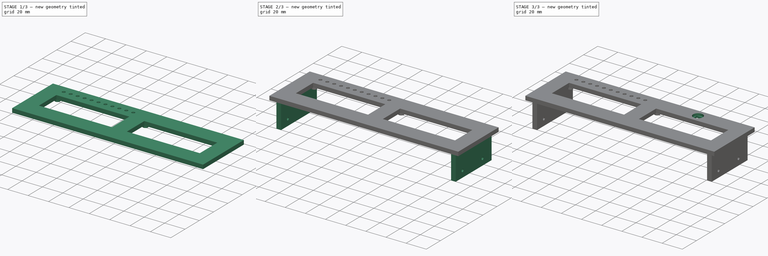
[diagram: build sequence overview — one tinted view per stage of 3, left to right]
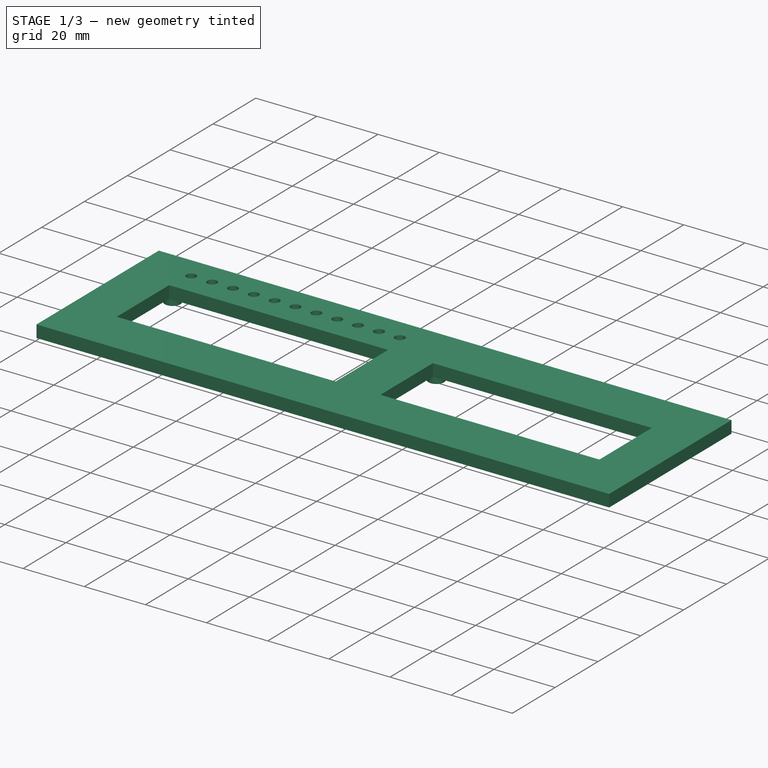
[diagram: stage 1 of 3 — iso view after this stage's code; geometry added in this stage tinted green]
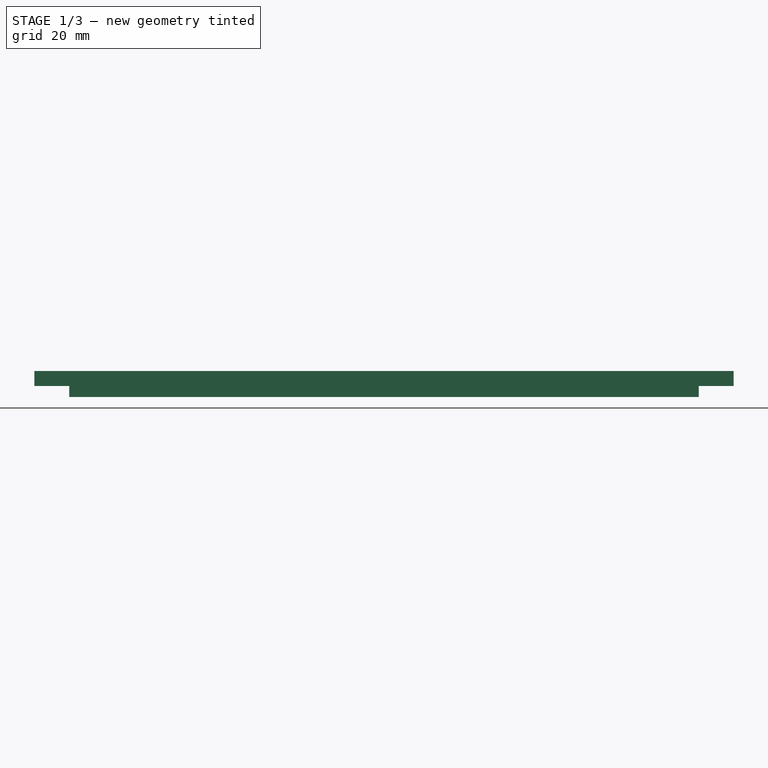
[diagram: stage 1 of 3 — front view after this stage's code; geometry added in this stage tinted green]
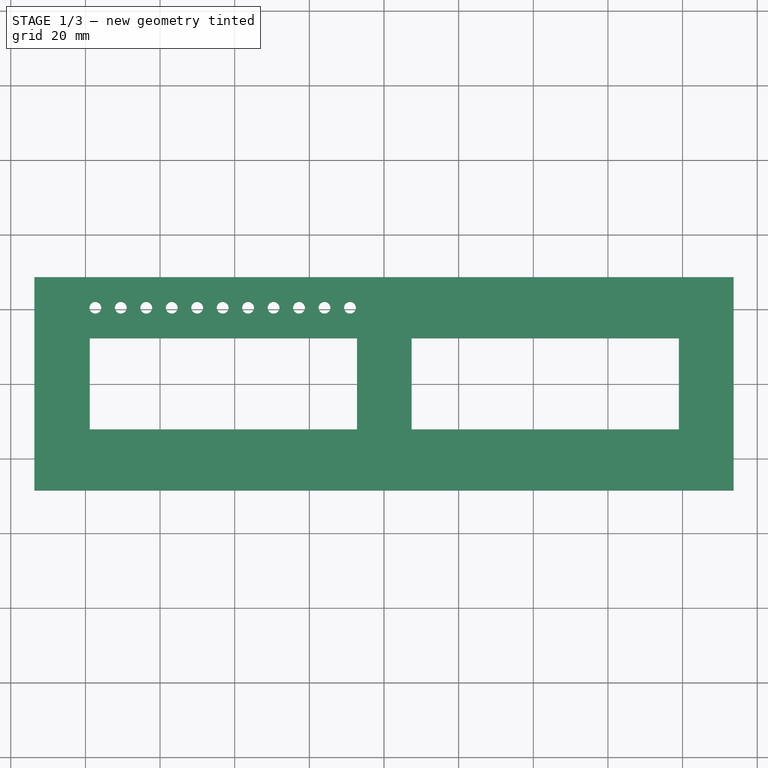
[diagram: stage 1 of 3 — top view after this stage's code; geometry added in this stage tinted green]
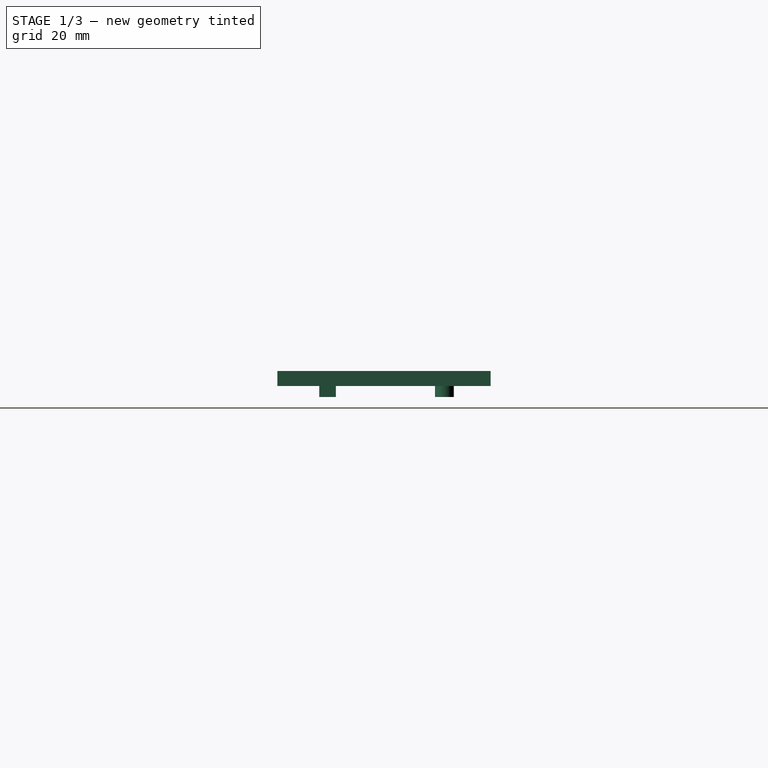
[diagram: stage 1 of 3 — right view after this stage's code; geometry added in this stage tinted green]
FCSTD DOCUMENT  (FreeCAD 1.0R39285 (Git))
Label: front_plate
License: All rights reserved
LicenseURL: http://en.wikipedia.org/wiki/All_rights_reserved
objects: Sketcher::SketchObject×6, PartDesign::Pad×3, PartDesign::Hole×2, PartDesign::Pocket×1, PartDesign::Body×1
note: 31 computed .brp shape members not serialized (recipe doc carries the construction recipe); baked Part::Feature solids carry a one-line shape summary decoded from their .brp

FEATURE [Sketcher::SketchObject] Sketch
  ArcFitTolerance = 1e-06
  AttachmentSupport = -> [XY_Plane]
  FullyConstrained = false
  MakeInternals = false
  MapMode = 5
  sketch-geometry (46):
    g0: LineSegment StartX=-93.6625 StartY=-28.575 StartZ=0 EndX=93.6625 EndY=-28.575 EndZ=0
    g1: LineSegment StartX=93.6625 StartY=-28.575 StartZ=0 EndX=93.6625 EndY=28.575 EndZ=0
    g2: LineSegment StartX=93.6625 StartY=28.575 StartZ=0 EndX=-93.6625 EndY=28.575 EndZ=0
    g3: LineSegment StartX=-93.6625 StartY=28.575 StartZ=0 EndX=-93.6625 EndY=-28.575 EndZ=0
    g4: GeomPoint [constr] X=0 Y=0 Z=0
    g5: LineSegment [constr] StartX=-88.9 StartY=-25.4 StartZ=0 EndX=88.9 EndY=-25.4 EndZ=0
    g6: LineSegment [constr] StartX=88.9 StartY=-25.4 StartZ=0 EndX=88.9 EndY=25.4 EndZ=0
    g7: LineSegment [constr] StartX=88.9 StartY=25.4 StartZ=0 EndX=-88.9 EndY=25.4 EndZ=0
    g8: LineSegment [constr] StartX=-88.9 StartY=25.4 StartZ=0 EndX=-88.9 EndY=-25.4 EndZ=0
    g9: GeomPoint [constr] X=0 Y=0 Z=0
    g10: GeomPoint [constr] X=-66.9291 Y=0 Z=0
    g11: LineSegment StartX=79.0152 StartY=12.2301 StartZ=0 EndX=7.41257 EndY=12.2301 EndZ=0
    g12: LineSegment StartX=79.0152 StartY=-12.2301 StartZ=0 EndX=79.0152 EndY=12.2301 EndZ=0
    g13: LineSegment StartX=7.41257 StartY=-12.2301 StartZ=0 EndX=79.0152 EndY=-12.2301 EndZ=0
    g14: LineSegment StartX=7.41257 StartY=12.2301 StartZ=0 EndX=7.41257 EndY=-12.2301 EndZ=0
    g15: LineSegment [constr] StartX=79.0152 StartY=-12.2301 StartZ=0 EndX=93.6625 EndY=-12.2301 EndZ=0
    g16: LineSegment StartX=-7.23477 StartY=-12.2301 StartZ=0 EndX=-78.8374 EndY=-12.2301 EndZ=0
    g17: LineSegment StartX=-78.8374 StartY=-12.2301 StartZ=0 EndX=-78.8374 EndY=12.2301 EndZ=0
    g18: LineSegment StartX=-78.8374 StartY=12.2301 StartZ=0 EndX=-7.23477 EndY=12.2301 EndZ=0
    g19: LineSegment StartX=-7.23477 StartY=12.2301 StartZ=0 EndX=-7.23477 EndY=-12.2301 EndZ=0
    g20: LineSegment [constr] StartX=-78.8374 StartY=-12.2301 StartZ=0 EndX=-93.6625 EndY=-12.2301 EndZ=0
    g21: LineSegment [constr] StartX=-7.23477 StartY=-12.2301 StartZ=0 EndX=7.41257 EndY=-12.2301 EndZ=0
    g22: LineSegment [constr] StartX=-78.8374 StartY=12.2301 StartZ=0 EndX=-78.8374 EndY=28.575 EndZ=0
    g23: GeomPoint [constr] X=-78.8374 Y=20.4026 Z=0
    g24: LineSegment [constr] StartX=-78.8374 StartY=20.4026 StartZ=0 EndX=-77.3388 EndY=20.4026 EndZ=0
    g25: Circle CenterX=-77.3388 CenterY=20.4026 CenterZ=0 NormalX=0 NormalY=0 NormalZ=1 AngleXU=0 Radius=1.5875
    g26: Circle CenterX=-70.5163 CenterY=20.4026 CenterZ=0 NormalX=0 NormalY=0 NormalZ=1 AngleXU=0 Radius=1.5875
    g27: Circle CenterX=-63.6939 CenterY=20.4026 CenterZ=0 NormalX=0 NormalY=0 NormalZ=1 AngleXU=0 Radius=1.5875
    g28: Circle CenterX=-56.8714 CenterY=20.4026 CenterZ=0 NormalX=0 NormalY=0 NormalZ=1 AngleXU=0 Radius=1.5875
    g29: Circle CenterX=-50.049 CenterY=20.4026 CenterZ=0 NormalX=0 NormalY=0 NormalZ=1 AngleXU=0 Radius=1.5875
    g30: Circle CenterX=-43.2266 CenterY=20.4026 CenterZ=0 NormalX=0 NormalY=0 NormalZ=1 AngleXU=0 Radius=1.5875
    g31: Circle CenterX=-36.4041 CenterY=20.4026 CenterZ=0 NormalX=0 NormalY=0 NormalZ=1 AngleXU=0 Radius=1.5875
    g32: Circle CenterX=-29.5817 CenterY=20.4026 CenterZ=0 NormalX=0 NormalY=0 NormalZ=1 AngleXU=0 Radius=1.5875
    g33: Circle CenterX=-22.7592 CenterY=20.4026 CenterZ=0 NormalX=0 NormalY=0 NormalZ=1 AngleXU=0 Radius=1.5875
    g34: Circle CenterX=-15.9368 CenterY=20.4026 CenterZ=0 NormalX=0 NormalY=0 NormalZ=1 AngleXU=0 Radius=1.5875
    g35: Circle CenterX=-9.11437 CenterY=20.4026 CenterZ=0 NormalX=0 NormalY=0 NormalZ=1 AngleXU=0 Radius=1.5875
    g36: LineSegment [constr] StartX=-77.3388 StartY=20.4026 StartZ=0 EndX=-70.5163 EndY=20.4026 EndZ=0
    g37: LineSegment [constr] StartX=-70.5163 StartY=20.4026 StartZ=0 EndX=-63.6939 EndY=20.4026 EndZ=0
    g38: LineSegment [constr] StartX=-63.6939 StartY=20.4026 StartZ=0 EndX=-56.8714 EndY=20.4026 EndZ=0
    g39: LineSegment [constr] StartX=-56.8714 StartY=20.4026 StartZ=0 EndX=-50.049 EndY=20.4026 EndZ=0
    g40: LineSegment [constr] StartX=-50.049 StartY=20.4026 StartZ=0 EndX=-43.2266 EndY=20.4026 EndZ=0
    g41: LineSegment [constr] StartX=-43.2266 StartY=20.4026 StartZ=0 EndX=-36.4041 EndY=20.4026 EndZ=0
    g42: LineSegment [constr] StartX=-36.4041 StartY=20.4026 StartZ=0 EndX=-29.5817 EndY=20.4026 EndZ=0
    g43: LineSegment [constr] StartX=-29.5817 StartY=20.4026 StartZ=0 EndX=-22.7592 EndY=20.4026 EndZ=0
    g44: LineSegment [constr] StartX=-22.7592 StartY=20.4026 StartZ=0 EndX=-15.9368 EndY=20.4026 EndZ=0
    g45: LineSegment [constr] StartX=-15.9368 StartY=20.4026 StartZ=0 EndX=-9.11437 EndY=20.4026 EndZ=0
  constraints (110):
    c: Coincident(g0,g1)
    c: Coincident(g1,g2)
    c: Coincident(g2,g3)
    c: Coincident(g3,g0)
    c: Horizontal(g0)
    c: Horizontal(g2)
    c: Vertical(g1)
    c: Vertical(g3)
    c: Symmetric(g2,g0,g4)
    c: Distance(g1,g3) = 187.325
    c: Distance(g0,g2) = 57.15
    c: Coincident(g4,g-1)
    c: Coincident(g5,g6)
    c: Coincident(g6,g7)
    c: Coincident(g7,g8)
    c: Coincident(g8,g5)
    c: Horizontal(g5)
    c: Horizontal(g7)
    c: Vertical(g6)
    c: Vertical(g8)
    c: Symmetric(g7,g5,g9)
    c: Distance(g6,g8) = 177.8
    c: Distance(g5,g7) = 50.8
    c: Coincident(g9,g4)
    c: PointOnObject(g10,g-1)
    c: Coincident(g13,g12)
    c: Coincident(g12,g11)
    c: Coincident(g11,g14)
    c: Coincident(g14,g13)
    c: Horizontal(g13)
    c: Horizontal(g11)
    c: Vertical(g12)
    c: Vertical(g14)
    c: Distance(g12,g14) = 71.6026
    c: Distance(g13,g11) = 24.4602
    c: Coincident(g15,g12)
    c: PointOnObject(g15,g1)
    c: Horizontal(g15)
    c: Coincident(g16,g17)
    c: Coincident(g17,g18)
    c: Coincident(g18,g19)
    c: Coincident(g19,g16)
    c: Horizontal(g16)
    c: Horizontal(g18)
    c: Vertical(g17)
    c: Vertical(g19)
    c: Distance(g17,g19) = 71.6026
    c: Distance(g16,g18) = 24.4602
    c: Coincident(g20,g17)
    c: Horizontal(g20)
    c: Coincident(g21,g16)
    c: Coincident(g21,g13)
    c: Horizontal(g21)
    c: DistanceX(g21,g21) = 14.6473
    c: DistanceX(g15,g15) = 14.6473
    c: Coincident(g22,g17)
    c: PointOnObject(g22,g2)
    c: Vertical(g22)
    c: Symmetric(g22,g22,g23)
    c: Distance(g24) = 1.4986
    c: Horizontal(g24)
    c: Diameter(g25) = 3.175
    c: Diameter(g26) = 3.175
    c: Diameter(g27) = 3.175
    c: Diameter(g28) = 3.175
    c: Diameter(g29) = 3.175
    c: Diameter(g30) = 3.175
    c: Diameter(g31) = 3.175
    c: Diameter(g32) = 3.175
    c: Diameter(g33) = 3.175
    c: Diameter(g34) = 3.175
    c: Diameter(g35) = 3.175
    c: Distance(g16,g5) = 13.1699
    c: Distance(g25,g26) = 6.82244
    c: DistanceX(g26,g27) = 6.82244
    c: DistanceX(g27,g28) = 6.82244
    c: DistanceX(g28,g29) = 6.82244
    c: Distance(g29,g30) = 6.82244
    c: Distance(g30,g31) = 6.82244
    c: Distance(g31,g32) = 6.82244
    c: Distance(g32,g33) = 6.82244
    c: Distance(g33,g34) = 6.82244
    c: Distance(g34,g35) = 6.82244
    c: Coincident(g36,g25)
    c: Coincident(g36,g26)
    c: Horizontal(g36)
    c: Coincident(g37,g26)
    c: Coincident(g37,g27)
    c: Horizontal(g37)
    c: Coincident(g38,g27)
    c: Coincident(g38,g28)
    c: Horizontal(g38)
    c: Coincident(g39,g28)
    c: Coincident(g39,g29)
    c: Horizontal(g39)
    c: Coincident(g40,g29)
    c: Coincident(g40,g30)
    c: Horizontal(g40)
    c: Coincident(g41,g30)
    c: Coincident(g41,g31)
    c: Horizontal(g41)
    c: Coincident(g42,g31)
    c: Coincident(g42,g32)
    c: Horizontal(g42)
    c: Coincident(g43,g32)
    c: Coincident(g43,g33)
    c: Horizontal(g43)
    c: Coincident(g44,g33)
    c: Coincident(g44,g34)
    c: Horizontal(g44)
FEATURE [PartDesign::Pad] Pad
  Direction = (0,0,1)
  Length = 4.0132
  Length2 = 10
  Profile = -> Sketch
  ReferenceAxis = -> Sketch [N_Axis]
  Suppressed = false
  Type = 0
FEATURE [Sketcher::SketchObject] Sketch001
  ArcFitTolerance = 1e-06
  AttachmentSupport = -> [Pad]
  ExternalGeometry = -> [Pad]
  FullyConstrained = true
  MakeInternals = false
  MapMode = 5
  Placement = pos=(0,0,0) rot=(1,0,0;3.14159rad)
  sketch-geometry (26):
    g0: LineSegment [constr] StartX=79.0152 StartY=-12.2301 StartZ=0 EndX=80.6662 EndY=-16.1925 EndZ=0
    g1: LineSegment [constr] StartX=7.41257 StartY=-12.2301 StartZ=0 EndX=5.76157 EndY=-16.1925 EndZ=0
    g2: LineSegment [constr] StartX=79.0152 StartY=12.2301 StartZ=0 EndX=80.6662 EndY=15.1257 EndZ=0
    g3: LineSegment [constr] StartX=7.41257 StartY=12.2301 StartZ=0 EndX=5.76157 EndY=15.1257 EndZ=0
    g4: LineSegment [constr] StartX=-7.23477 StartY=12.2301 StartZ=0 EndX=-5.58377 EndY=15.1257 EndZ=0
    g5: LineSegment [constr] StartX=-78.8374 StartY=12.2301 StartZ=0 EndX=-80.4884 EndY=15.1257 EndZ=0
    g6: LineSegment [constr] StartX=-78.8374 StartY=-12.2301 StartZ=0 EndX=-80.4884 EndY=-16.1925 EndZ=0
    g7: LineSegment [constr] StartX=-7.23477 StartY=-12.2301 StartZ=0 EndX=-5.58377 EndY=-16.1925 EndZ=0
    g8: LineSegment [constr] StartX=5.76157 StartY=15.1257 StartZ=0 EndX=0 EndY=15.1257 EndZ=0
    g9: LineSegment StartX=-84.328 StartY=12.9032 StartZ=0 EndX=84.328 EndY=12.9032 EndZ=0
    g10: LineSegment StartX=84.328 StartY=12.9032 StartZ=0 EndX=84.328 EndY=17.3482 EndZ=0
    g11: LineSegment StartX=84.328 StartY=17.3482 StartZ=0 EndX=-84.328 EndY=17.3482 EndZ=0
    g12: LineSegment StartX=-84.328 StartY=17.3482 StartZ=0 EndX=-84.328 EndY=12.9032 EndZ=0
    g13: GeomPoint [constr] X=0 Y=15.1257 Z=0
    g14: Circle CenterX=80.6662 CenterY=-16.1925 CenterZ=0 NormalX=0 NormalY=0 NormalZ=1 AngleXU=0 Radius=2.54
    g15: Circle CenterX=5.76157 CenterY=-16.1925 CenterZ=0 NormalX=0 NormalY=0 NormalZ=1 AngleXU=0 Radius=2.54
    g16: Circle CenterX=-5.58377 CenterY=-16.1925 CenterZ=0 NormalX=0 NormalY=0 NormalZ=1 AngleXU=0 Radius=2.54
    g17: Circle CenterX=-80.4884 CenterY=-16.1925 CenterZ=0 NormalX=0 NormalY=0 NormalZ=1 AngleXU=0 Radius=2.54
    g18: Circle CenterX=80.6662 CenterY=-16.1925 CenterZ=0 NormalX=0 NormalY=0 NormalZ=1 AngleXU=0 Radius=1.016
    g19: Circle CenterX=5.76157 CenterY=-16.1925 CenterZ=0 NormalX=0 NormalY=0 NormalZ=1 AngleXU=0 Radius=1.016
    g20: Circle CenterX=-5.58377 CenterY=-16.1925 CenterZ=0 NormalX=0 NormalY=0 NormalZ=1 AngleXU=0 Radius=1.016
    g21: Circle CenterX=-80.4884 CenterY=-16.1925 CenterZ=0 NormalX=0 NormalY=0 NormalZ=1 AngleXU=0 Radius=1.016
    g22: Circle CenterX=-80.4884 CenterY=15.1257 CenterZ=0 NormalX=0 NormalY=0 NormalZ=1 AngleXU=0 Radius=1.016
    g23: Circle CenterX=-5.58377 CenterY=15.1257 CenterZ=0 NormalX=0 NormalY=0 NormalZ=1 AngleXU=0 Radius=1.016
    g24: Circle CenterX=5.76157 CenterY=15.1257 CenterZ=0 NormalX=0 NormalY=0 NormalZ=1 AngleXU=0 Radius=1.016
    g25: Circle CenterX=80.6662 CenterY=15.1257 CenterZ=0 NormalX=0 NormalY=0 NormalZ=1 AngleXU=0 Radius=1.016
  constraints (63):
    c: DistanceX(g0,g0) = 1.651
    c: DistanceY(g0,g0) = 3.9624
    c: Coincident(g0,g-13)
    c: DistanceX(g1,g1) = 1.651
    c: DistanceY(g1,g1) = 3.9624
    c: Coincident(g1,g-13)
    c: DistanceX(g2,g2) = 1.651
    c: DistanceY(g2,g2) = 2.8956
    c: Coincident(g2,g-12)
    c: DistanceX(g3,g3) = 1.651
    c: DistanceY(g3,g3) = 2.8956
    c: Coincident(g3,g-11)
    c: DistanceX(g4,g4) = 1.651
    c: DistanceY(g4,g4) = 2.8956
    c: Coincident(g4,g-9)
    c: DistanceX(g5,g5) = 1.651
    c: DistanceY(g5,g5) = 2.8956
    c: Coincident(g5,g-7)
    c: DistanceX(g6,g6) = 1.651
    c: DistanceY(g6,g6) = 3.9624
    c: Coincident(g6,g-8)
    c: DistanceX(g7,g7) = 1.651
    c: DistanceY(g7,g7) = 3.9624
    c: Coincident(g7,g-9)
    c: Coincident(g8,g3)
    c: PointOnObject(g8,g-2)
    c: Horizontal(g8)
    c: Coincident(g9,g10)
    c: Coincident(g10,g11)
    c: Coincident(g11,g12)
    c: Coincident(g12,g9)
    c: Horizontal(g9)
    c: Horizontal(g11)
    c: Vertical(g10)
    c: Vertical(g12)
    c: Symmetric(g11,g9,g13)
    c: Distance(g9,g11) = 4.445
    c: Coincident(g13,g8)
    c: Diameter(g14) = 5.08
    c: Coincident(g14,g0)
    c: Diameter(g15) = 5.08
    c: Coincident(g15,g1)
    c: Diameter(g16) = 5.08
    c: Coincident(g16,g7)
    c: Diameter(g17) = 5.08
    c: Coincident(g17,g6)
    c: Diameter(g18) = 2.032
    c: Coincident(g18,g0)
    c: Diameter(g19) = 2.032
    c: Coincident(g19,g1)
    c: Diameter(g20) = 2.032
    c: Coincident(g20,g7)
    c: Diameter(g21) = 2.032
    c: Coincident(g21,g6)
    c: Diameter(g22) = 2.032
    c: Coincident(g22,g5)
    c: Diameter(g23) = 2.032
    c: Coincident(g23,g4)
    c: Diameter(g24) = 2.032
    c: Coincident(g24,g3)
    c: Diameter(g25) = 2.032
    c: Coincident(g25,g2)
    c: DistanceX(g11,g11) = 168.656
FEATURE [PartDesign::Pad] Pad001
  BaseFeature = -> Pad
  Direction = (0,0,-1)
  Length = 2.921
  Length2 = 10
  Profile = -> Sketch001
  ReferenceAxis = -> Sketch001 [N_Axis]
  Suppressed = false
  Type = 0
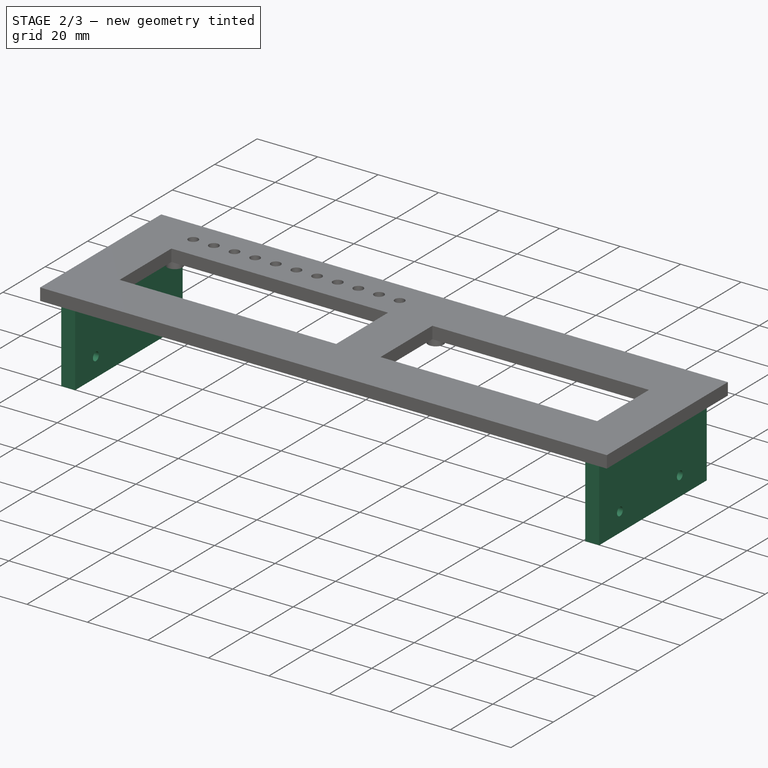
[diagram: stage 2 of 3 — iso view after this stage's code; geometry added in this stage tinted green]
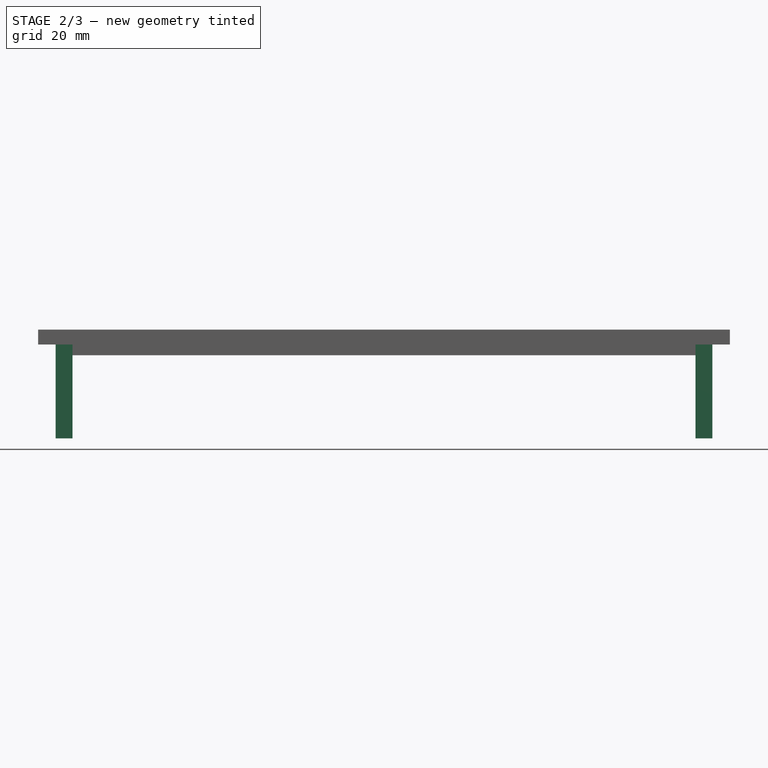
[diagram: stage 2 of 3 — front view after this stage's code; geometry added in this stage tinted green]
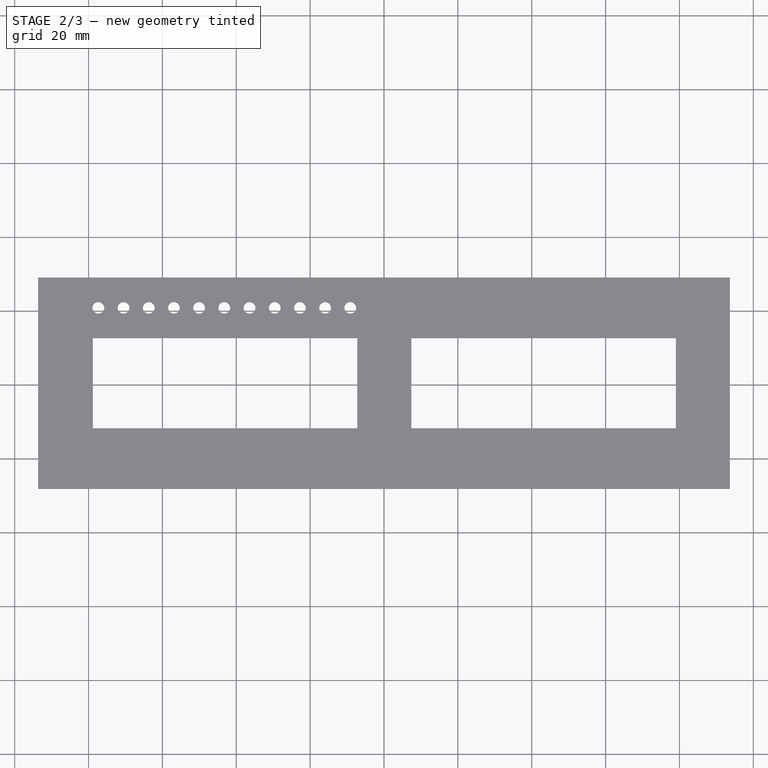
[diagram: stage 2 of 3 — top view after this stage's code; geometry added in this stage tinted green]
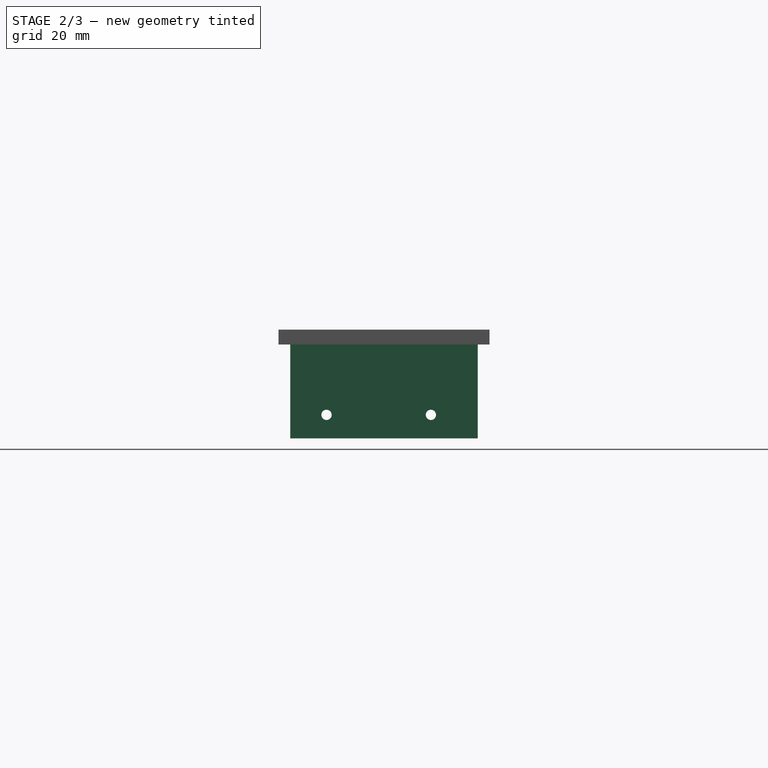
[diagram: stage 2 of 3 — right view after this stage's code; geometry added in this stage tinted green]
FEATURE [Sketcher::SketchObject] Sketch002
  ArcFitTolerance = 1e-06
  AttachmentSupport = -> [Pad001]
  ExternalGeometry = -> [Pad001]
  FullyConstrained = true
  MakeInternals = false
  MapMode = 5
  Placement = pos=(0,0,0) rot=(1,0,0;3.14159rad)
  sketch-geometry (15):
    g0: LineSegment [constr] StartX=-88.9 StartY=-25.4 StartZ=0 EndX=88.9 EndY=-25.4 EndZ=0
    g1: LineSegment [constr] StartX=88.9 StartY=-25.4 StartZ=0 EndX=88.9 EndY=25.4 EndZ=0
    g2: LineSegment [constr] StartX=88.9 StartY=25.4 StartZ=0 EndX=-88.9 EndY=25.4 EndZ=0
    g3: LineSegment [constr] StartX=-88.9 StartY=25.4 StartZ=0 EndX=-88.9 EndY=-25.4 EndZ=0
    g4: GeomPoint [constr] X=0 Y=0 Z=0
    g5: LineSegment [constr] StartX=84.328 StartY=17.3482 StartZ=0 EndX=84.328 EndY=25.4 EndZ=0
    g6: LineSegment [constr] StartX=-84.328 StartY=17.3482 StartZ=0 EndX=-84.328 EndY=25.4 EndZ=0
    g7: LineSegment StartX=84.328 StartY=25.4 StartZ=0 EndX=84.328 EndY=-25.4 EndZ=0
    g8: LineSegment StartX=84.328 StartY=-25.4 StartZ=0 EndX=88.9 EndY=-25.4 EndZ=0
    g9: LineSegment StartX=88.9 StartY=-25.4 StartZ=0 EndX=88.9 EndY=25.4 EndZ=0
    g10: LineSegment StartX=88.9 StartY=25.4 StartZ=0 EndX=84.328 EndY=25.4 EndZ=0
    g11: LineSegment StartX=-84.328 StartY=25.4 StartZ=0 EndX=-88.9 EndY=25.4 EndZ=0
    g12: LineSegment StartX=-88.9 StartY=25.4 StartZ=0 EndX=-88.9 EndY=-25.4 EndZ=0
    g13: LineSegment StartX=-88.9 StartY=-25.4 StartZ=0 EndX=-84.328 EndY=-25.4 EndZ=0
    g14: LineSegment StartX=-84.328 StartY=-25.4 StartZ=0 EndX=-84.328 EndY=25.4 EndZ=0
  constraints (39):
    c: Coincident(g0,g1)
    c: Coincident(g1,g2)
    c: Coincident(g2,g3)
    c: Coincident(g3,g0)
    c: Horizontal(g0)
    c: Horizontal(g2)
    c: Vertical(g1)
    c: Vertical(g3)
    c: Symmetric(g2,g0,g4)
    c: Distance(g1,g3) = 177.8
    c: Distance(g0,g2) = 50.8
    c: Coincident(g4,g-1)
    c: Coincident(g5,g-8)
    c: PointOnObject(g5,g2)
    c: Vertical(g5)
    c: Perpendicular(g2,g5)
    c: Coincident(g6,g-8)
    c: PointOnObject(g6,g2)
    c: Perpendicular(g2,g6)
    c: Coincident(g7,g8)
    c: Coincident(g8,g9)
    c: Coincident(g9,g10)
    c: Coincident(g10,g7)
    c: Vertical(g7)
    c: Vertical(g9)
    c: Horizontal(g8)
    c: Horizontal(g10)
    c: Coincident(g7,g5)
    c: Coincident(g8,g0)
    c: Coincident(g11,g12)
    c: Coincident(g12,g13)
    c: Coincident(g13,g14)
    c: Coincident(g14,g11)
    c: Horizontal(g11)
    c: Horizontal(g13)
    c: Vertical(g12)
    c: Vertical(g14)
    c: Coincident(g11,g6)
    c: Coincident(g12,g0)
FEATURE [PartDesign::Pad] Pad002
  BaseFeature = -> Pad001
  Direction = (0,0,-1)
  Length = 25.4
  Length2 = 10
  Profile = -> Sketch002
  ReferenceAxis = -> Sketch002 [N_Axis]
  Suppressed = false
  Type = 0
FEATURE [Sketcher::SketchObject] Sketch003
  ArcFitTolerance = 1e-06
  AttachmentSupport = -> [Pad002]
  ExternalGeometry = -> [Pad002]
  FullyConstrained = true
  MakeInternals = false
  MapMode = 5
  Placement = pos=(-88.9,0,0) rot=(0.57735,-0.57735,-0.57735;2.0944rad)
  sketch-geometry (4):
    g0: LineSegment [constr] StartX=-25.4 StartY=-25.4 StartZ=0 EndX=-12.7 EndY=-19.05 EndZ=0
    g1: LineSegment [constr] StartX=25.4 StartY=-25.4 StartZ=0 EndX=15.5677 EndY=-19.05 EndZ=0
    g2: Circle CenterX=-12.7 CenterY=-19.05 CenterZ=0 NormalX=0 NormalY=0 NormalZ=1 AngleXU=0 Radius=1.143
    g3: Circle CenterX=15.5677 CenterY=-19.05 CenterZ=0 NormalX=0 NormalY=0 NormalZ=1 AngleXU=0 Radius=1.143
  constraints (10):
    c: DistanceX(g0,g0) = 12.7
    c: DistanceY(g0,g0) = 6.35
    c: Coincident(g0,g-5)
    c: DistanceX(g1,g1) = 9.83234
    c: DistanceY(g1,g1) = 6.35
    c: Coincident(g1,g-6)
    c: Diameter(g2) = 2.286
    c: Coincident(g2,g0)
    c: Diameter(g3) = 2.286
    c: Coincident(g3,g1)
FEATURE [PartDesign::Hole] Hole
  BaseFeature = -> Pad002
  CustomThreadClearance = 0
  Depth = 177.8
  DepthType = 0
  Diameter = 2.77813
  DrillForDepth = false
  DrillPoint = 1
  DrillPointAngle = 118
  HoleCutCountersinkAngle = 90
  HoleCutCustomValues = false
  HoleCutDepth = 0
  HoleCutDiameter = 0
  HoleCutType = 0
  ModelThread = false
  Profile = -> Sketch003
  Suppressed = false
  Tapered = false
  TaperedAngle = 90
  ThreadClass = 0
  ThreadDepth = 177.8
  ThreadDepthType = 0
  ThreadDirection = 0
  ThreadFit = 0
  ThreadSize = 0
  ThreadType = 0
  Threaded = false
  UseCustomThreadClearance = false
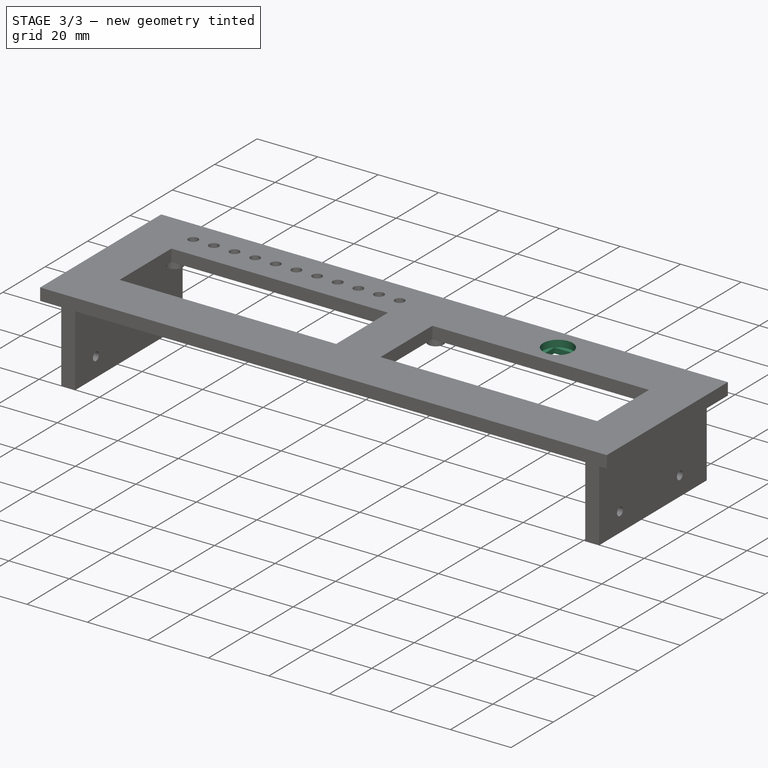
[diagram: stage 3 of 3 — iso view after this stage's code; geometry added in this stage tinted green]
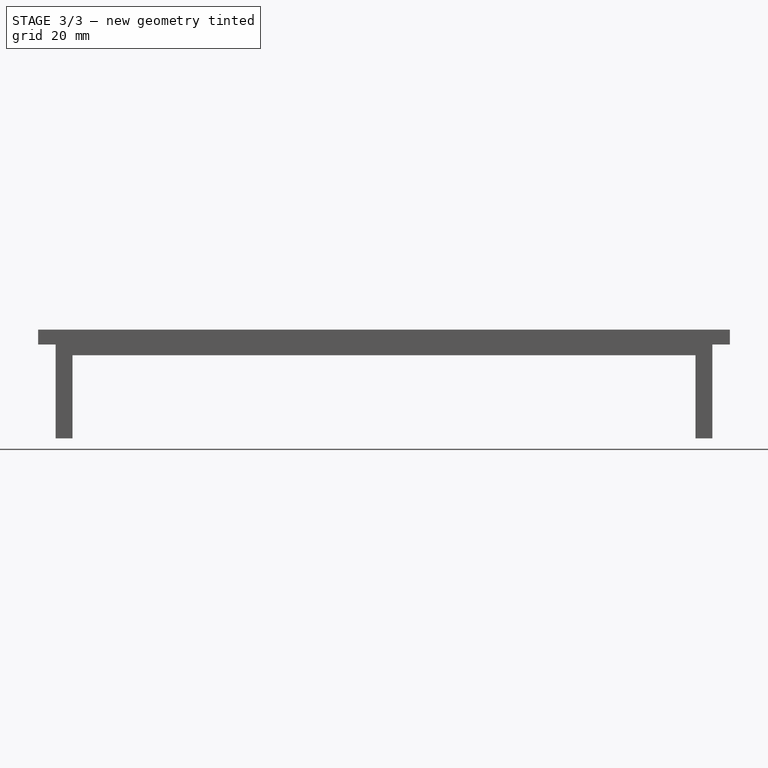
[diagram: stage 3 of 3 — front view after this stage's code; geometry added in this stage tinted green]
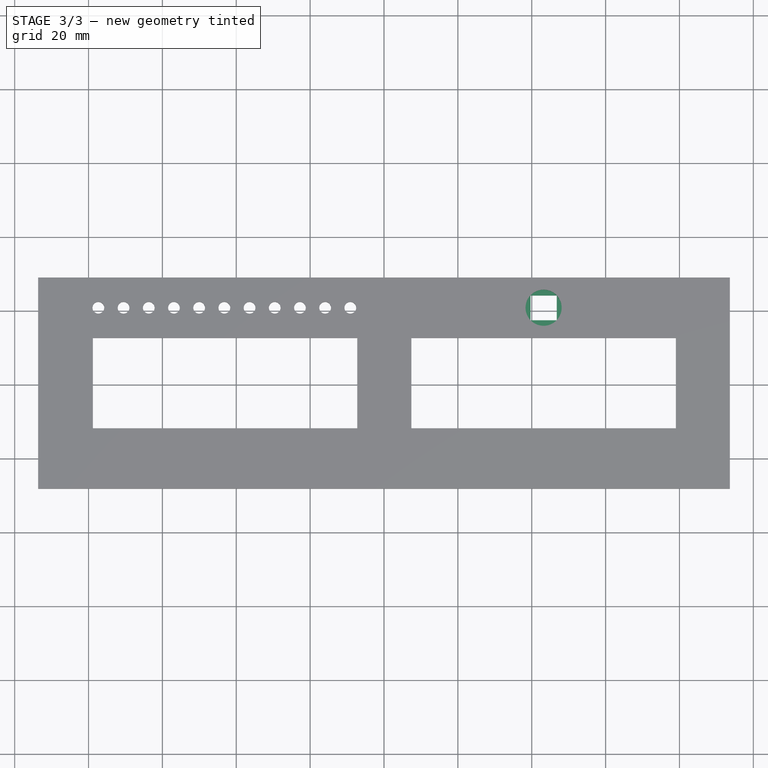
[diagram: stage 3 of 3 — top view after this stage's code; geometry added in this stage tinted green]
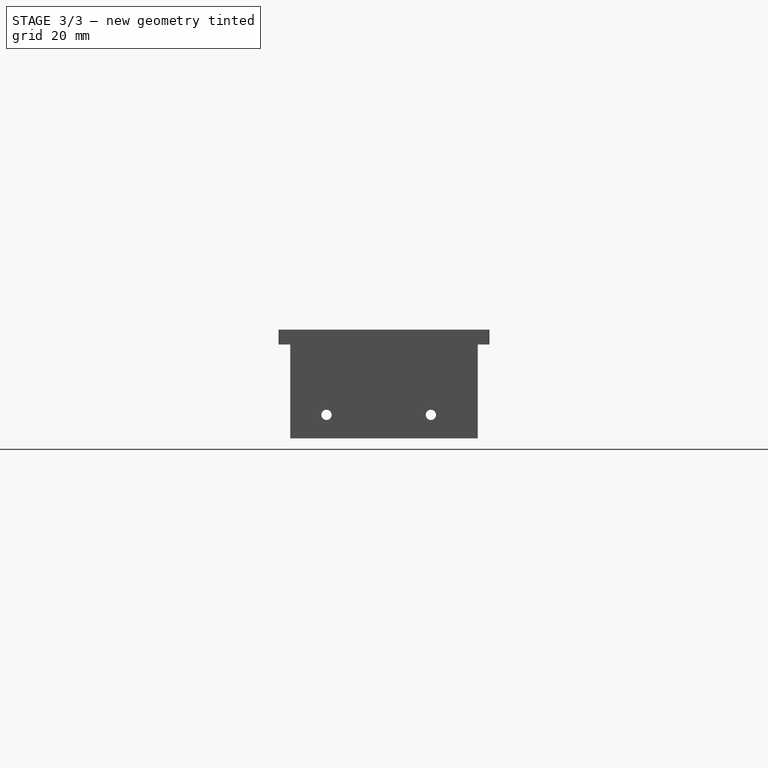
[diagram: stage 3 of 3 — right view after this stage's code; geometry added in this stage tinted green]
FEATURE [Sketcher::SketchObject] Sketch004
  ArcFitTolerance = 1e-06
  AttachmentSupport = -> [Hole]
  ExternalGeometry = -> [Hole]
  FullyConstrained = true
  MakeInternals = false
  MapMode = 5
  Placement = pos=(0,0,4.0132) rot=(0,0,1;0rad)
  sketch-geometry (6):
    g0: LineSegment [constr] StartX=79.0152 StartY=12.2301 StartZ=0 EndX=79.0152 EndY=20.4026 EndZ=0
    g1: LineSegment [constr] StartX=79.0152 StartY=20.4026 StartZ=0 EndX=79.0152 EndY=28.575 EndZ=0
    g2: LineSegment [constr] StartX=7.41257 StartY=12.2301 StartZ=0 EndX=7.41257 EndY=28.575 EndZ=0
    g3: LineSegment [constr] StartX=79.0152 StartY=20.4026 StartZ=0 EndX=43.2139 EndY=20.4026 EndZ=0
    g4: Circle CenterX=43.2139 CenterY=20.4026 CenterZ=0 NormalX=0 NormalY=0 NormalZ=1 AngleXU=0 Radius=5.08
    g5: LineSegment [constr] StartX=43.2139 StartY=20.4026 StartZ=0 EndX=7.41257 EndY=20.4026 EndZ=0
  constraints (16):
    c: Coincident(g0,g-5)
    c: Vertical(g0)
    c: Coincident(g1,g0)
    c: PointOnObject(g1,g-6)
    c: Vertical(g1)
    c: Equal(g1,g0)
    c: Coincident(g2,g-5)
    c: PointOnObject(g2,g-6)
    c: Vertical(g2)
    c: Coincident(g3,g0)
    c: Horizontal(g3)
    c: Diameter(g4) = 10.16
    c: Coincident(g4,g3)
    c: Coincident(g5,g3)
    c: Symmetric(g2,g2,g5)
    c: Equal(g5,g3)
FEATURE [PartDesign::Hole] Hole001
  BaseFeature = -> Hole
  CustomThreadClearance = 0
  Depth = 2.286
  DepthType = 0
  Diameter = 9.779
  DrillForDepth = false
  DrillPoint = 0
  DrillPointAngle = 121
  HoleCutCountersinkAngle = 90
  HoleCutCustomValues = false
  HoleCutDepth = 0
  HoleCutDiameter = 10.2616
  HoleCutType = 0
  ModelThread = false
  Profile = -> Sketch004
  Suppressed = false
  Tapered = false
  TaperedAngle = 90
  ThreadClass = 0
  ThreadDepth = 2.286
  ThreadDepthType = 0
  ThreadDirection = 0
  ThreadFit = 0
  ThreadSize = 0
  ThreadType = 0
  Threaded = false
  UseCustomThreadClearance = false
FEATURE [Sketcher::SketchObject] Sketch005
  ArcFitTolerance = 1e-06
  AttachmentSupport = -> [Hole001]
  ExternalGeometry = -> [Hole001]
  FullyConstrained = true
  MakeInternals = false
  MapMode = 5
  Placement = pos=(0,0,1.7272) rot=(0,0,1;0rad)
  sketch-geometry (5):
    g0: LineSegment StartX=39.6579 StartY=17.0466 StartZ=0 EndX=46.7699 EndY=17.0466 EndZ=0
    g1: LineSegment StartX=46.7699 StartY=17.0466 StartZ=0 EndX=46.7699 EndY=23.7585 EndZ=0
    g2: LineSegment StartX=46.7699 StartY=23.7585 StartZ=0 EndX=39.6579 EndY=23.7585 EndZ=0
    g3: LineSegment StartX=39.6579 StartY=23.7585 StartZ=0 EndX=39.6579 EndY=17.0466 EndZ=0
    g4: GeomPoint [constr] X=43.2139 Y=20.4026 Z=0
  constraints (12):
    c: Coincident(g0,g1)
    c: Coincident(g1,g2)
    c: Coincident(g2,g3)
    c: Coincident(g3,g0)
    c: Horizontal(g0)
    c: Horizontal(g2)
    c: Vertical(g1)
    c: Vertical(g3)
    c: Symmetric(g2,g0,g4)
    c: Distance(g1,g3) = 7.112
    c: Coincident(g4,g-3)
    c: PointOnObject(g1,g-3)
FEATURE [PartDesign::Pocket] Pocket
  BaseFeature = -> Hole001
  Direction = (0,0,-1)
  Length = 5
  Length2 = 5
  Profile = -> Sketch005
  ReferenceAxis = -> Sketch005 [N_Axis]
  Suppressed = false
  Type = 1
FEATURE [PartDesign::Body] Body
  AllowCompound = false
  Group = -> [Sketch,Pad,Sketch001,Pad001,Sketch002,Pad002,Sketch003,Hole,Sketch004,Hole001,Sketch005,Pocket]
  Origin = -> Origin
  Tip = -> Pocket
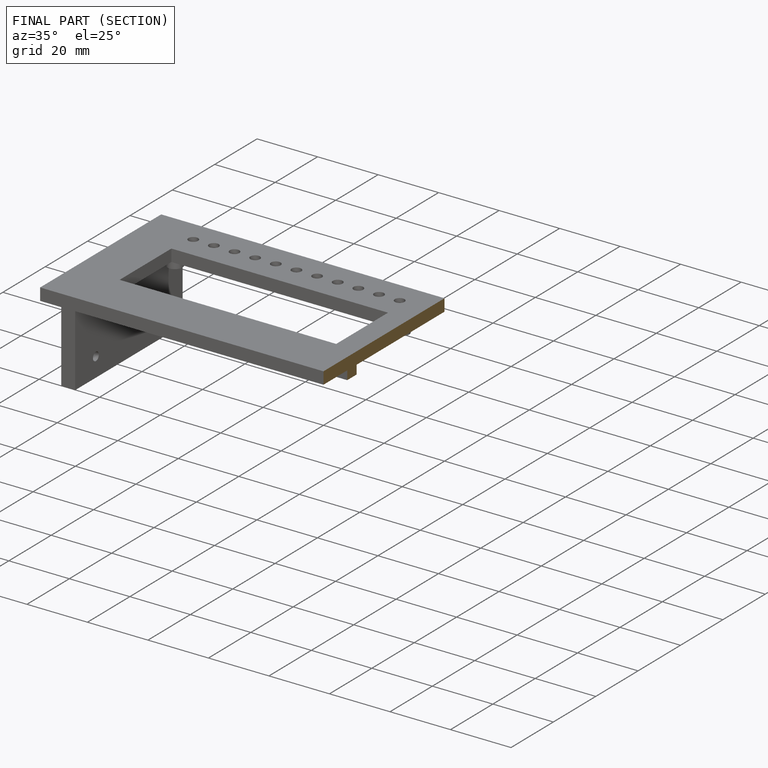
[diagram: finished part — half-section view (interior)]
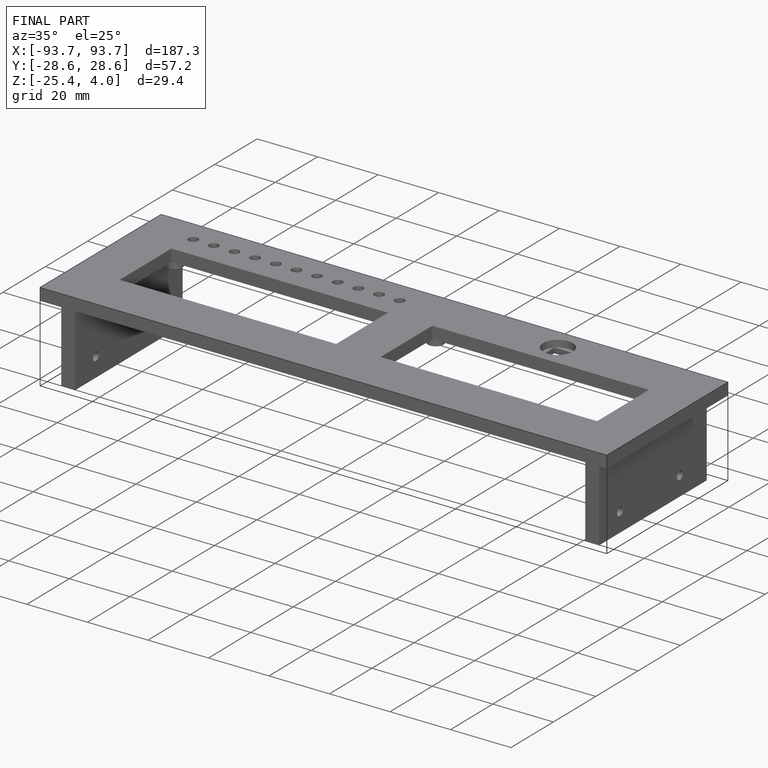
[diagram: finished part — iso view with bounding-box wireframe]
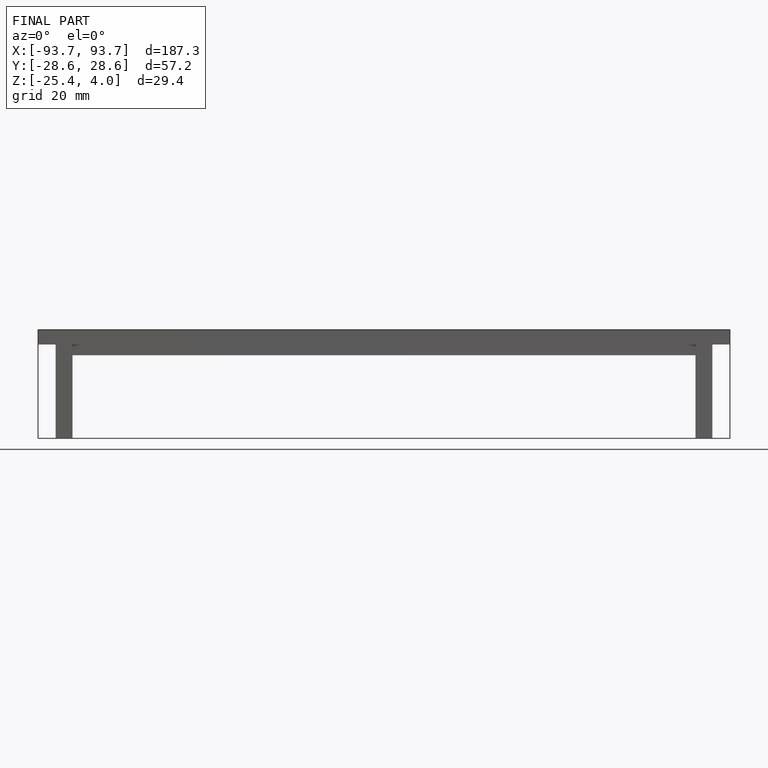
[diagram: finished part — front view with bounding-box wireframe]
